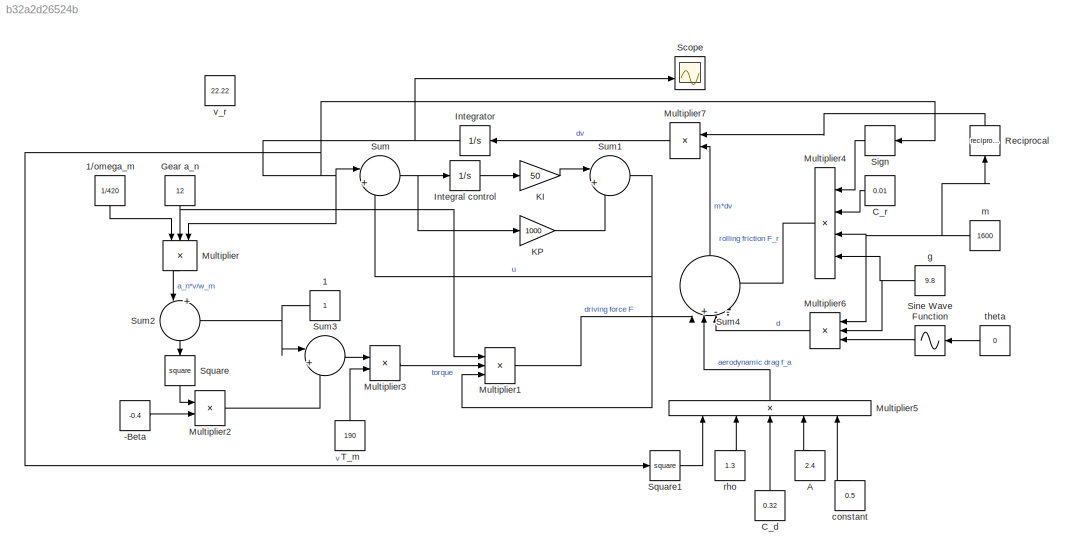
MODEL slx_b32a2d26524b
KIND model
CONFIG AbsTol = auto
CONFIG EnableMultiTasking = off
CONFIG FixedStep = auto
CONFIG MaxStep = auto
CONFIG MinStep = auto
CONFIG RelTol = 1e-3
CONFIG SampleTimeConstraint = Unconstrained
CONFIG Solver = VariableStepAuto
CONFIG SolverName = VariableStepAuto
CONFIG StartTime = 0.0
CONFIG StopTime = 10.0
BLOCK [Constant] -Beta
  Value = -0.4
BLOCK [Constant] 1
BLOCK [Constant] 1//omega_m
  Value = 1/420
BLOCK [Constant] A
  Value = 2.4
BLOCK [Constant] C_d
  Value = 0.32
BLOCK [Constant] C_r
  Value = 0.01
BLOCK [Constant] Gear a_n
  Value = 12
BLOCK [Integrator] Integral control
  Ports = [1, 1]
BLOCK [Integrator] Integrator
  Ports = [1, 1]
BLOCK [Gain] KI
  Gain = 50
  OutDataTypeStr = Inherit: Inherit via internal rule
  ParamDataTypeStr = Inherit: Inherit via internal rule
  SaturateOnIntegerOverflow = off
BLOCK [Gain] KP
  Gain = 1000
  OutDataTypeStr = Inherit: Inherit via internal rule
  ParamDataTypeStr = Inherit: Inherit via internal rule
  SaturateOnIntegerOverflow = off
BLOCK [Product] Multiplier
  InputSameDT = off
  Inputs = ***
  OutDataTypeStr = Inherit: Inherit via internal rule
  Ports = [3, 1]
  RndMeth = Floor
  SaturateOnIntegerOverflow = off
BLOCK [Product] Multiplier1
  InputSameDT = off
  Inputs = ***
  OutDataTypeStr = Inherit: Inherit via internal rule
  Ports = [3, 1]
  RndMeth = Floor
  SaturateOnIntegerOverflow = off
BLOCK [Product] Multiplier2
  InputSameDT = off
  Inputs = **
  OutDataTypeStr = Inherit: Inherit via internal rule
  Ports = [2, 1]
  RndMeth = Floor
  SaturateOnIntegerOverflow = off
BLOCK [Product] Multiplier3
  InputSameDT = off
  Inputs = **
  OutDataTypeStr = Inherit: Inherit via internal rule
  Ports = [2, 1]
  RndMeth = Floor
  SaturateOnIntegerOverflow = off
BLOCK [Product] Multiplier4
  InputSameDT = off
  Inputs = ****
  OutDataTypeStr = Inherit: Inherit via internal rule
  Ports = [4, 1]
  RndMeth = Floor
  SaturateOnIntegerOverflow = off
BLOCK [Product] Multiplier5
  InputSameDT = off
  Inputs = *****
  OutDataTypeStr = Inherit: Inherit via internal rule
  Ports = [5, 1]
  RndMeth = Floor
  SaturateOnIntegerOverflow = off
BLOCK [Product] Multiplier6
  InputSameDT = off
  Inputs = ***
  OutDataTypeStr = Inherit: Inherit via internal rule
  Ports = [3, 1]
  RndMeth = Floor
  SaturateOnIntegerOverflow = off
BLOCK [Product] Multiplier7
  InputSameDT = off
  Inputs = **
  OutDataTypeStr = Inherit: Inherit via internal rule
  Ports = [2, 1]
  RndMeth = Floor
  SaturateOnIntegerOverflow = off
BLOCK [Math] Reciprocal 
  Operator = reciprocal
  Ports = [1, 1]
BLOCK [Scope] Scope
  NumInputPorts = 2
  Ports = [2]
  ScopeSpecificationString = Simulink.scopes.TimeScopeBlockCfg('CurrentConfiguration', extmgr.ConfigurationSet(extmgr.Configuration('Core','General UI',true),extmgr.Configuration('Core','Source UI',true),extmgr.Configuration('Sources','WiredSimulink',true),extmgr.Configuration('Visuals','Time Domain',true,'SerializedDisplays',{struct('MinYLimReal','70.00000','MaxYLimReal','90.00000','YLabelReal','','MinYLimMag','70.00000','Ma...<+1327ch>
BLOCK [Signum] Sign
BLOCK [Sin] Sine Wave Function
  Ports = [1, 1]
  SampleTime = 0
  TimeSource = Use external signal
BLOCK [Math] Square
  Operator = square
  Ports = [1, 1]
BLOCK [Math] Square1
  Operator = square
  Ports = [1, 1]
BLOCK [Sum] Sum
  IconShape = round
  InputSameDT = off
  Inputs = |+-
  OutDataTypeStr = Inherit: Inherit via internal rule
  Ports = [2, 1]
  SaturateOnIntegerOverflow = off
BLOCK [Sum] Sum1
  IconShape = round
  InputSameDT = off
  Inputs = |++
  OutDataTypeStr = Inherit: Inherit via internal rule
  Ports = [2, 1]
  SaturateOnIntegerOverflow = off
BLOCK [Sum] Sum2
  IconShape = round
  InputSameDT = off
  Inputs = |+-
  OutDataTypeStr = Inherit: Inherit via internal rule
  Ports = [2, 1]
  SaturateOnIntegerOverflow = off
BLOCK [Sum] Sum3
  IconShape = round
  InputSameDT = off
  Inputs = |++
  OutDataTypeStr = Inherit: Inherit via internal rule
  Ports = [2, 1]
  SaturateOnIntegerOverflow = off
BLOCK [Sum] Sum4
  IconShape = round
  InputSameDT = off
  Inputs = |+---
  OutDataTypeStr = Inherit: Inherit via internal rule
  Ports = [4, 1]
  SaturateOnIntegerOverflow = off
BLOCK [Constant] T_m
  Value = 190
BLOCK [Constant] constant
  Value = 0.5
BLOCK [Constant] g
  Value = 9.8
BLOCK [Constant] m
  Value = 1600
BLOCK [Constant] rho
  Value = 1.3
BLOCK [Constant] theta
  Value = 0
BLOCK [Constant] v_r
  Value = 22.22
LINE -Beta:1 -> Multiplier2:2
LINE 1//omega_m:1 -> Multiplier:1
NET 1:1 -> Sum2:2, Sum3:1
LINE A:1 -> Multiplier5:4
LINE C_d:1 -> Multiplier5:3
LINE C_r:1 -> Multiplier4:2
NET Gear a_n:1 -> Multiplier1:1, Multiplier:2
LINE Integral control:1 -> KI:1
NET Integrator:1 -> Multiplier:3, Scope:2, Sign:1, Square1:1, Sum:1
LINE KI:1 -> Sum1:1
LINE KP:1 -> Sum1:2
LINE Multiplier1:1 -> Sum4:1
LINE Multiplier2:1 -> Sum3:2
LINE Multiplier3:1 -> Multiplier1:2
LINE Multiplier4:1 -> Sum4:4
LINE Multiplier5:1 -> Sum4:2
LINE Multiplier6:1 -> Sum4:3
LINE Multiplier7:1 -> Integrator:1
LINE Multiplier:1 -> Sum2:1
LINE Reciprocal :1 -> Multiplier7:1
LINE Sign:1 -> Multiplier4:1
LINE Sine Wave Function:1 -> Multiplier6:3
LINE Square1:1 -> Multiplier5:1
LINE Square:1 -> Multiplier2:1
NET Sum1:1 -> Multiplier1:3, Sum:2
LINE Sum2:1 -> Square:1
LINE Sum3:1 -> Multiplier3:1
LINE Sum4:1 -> Multiplier7:2
NET Sum:1 -> Integral control:1, KP:1
LINE T_m:1 -> Multiplier3:2
LINE constant:1 -> Multiplier5:5
NET g:1 -> Multiplier4:4, Multiplier6:2
NET m:1 -> Multiplier4:3, Multiplier6:1, Reciprocal :1
LINE rho:1 -> Multiplier5:2
LINE theta:1 -> Sine Wave Function:1
note: NET lines group one-source signal fan-out (src -> all destinations, sorted); 1:1 wires keep LINE
